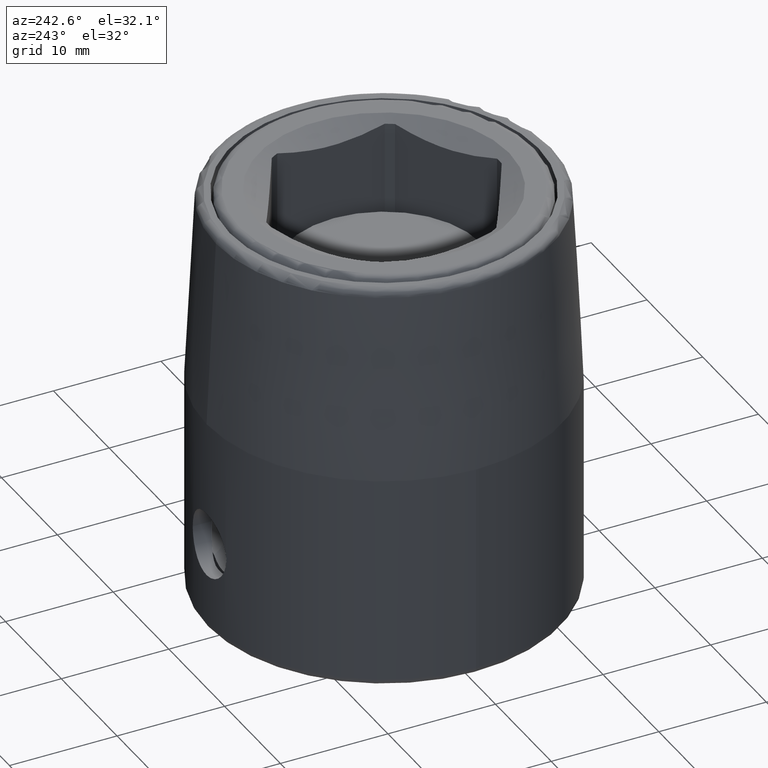
[diagram: clean part render]
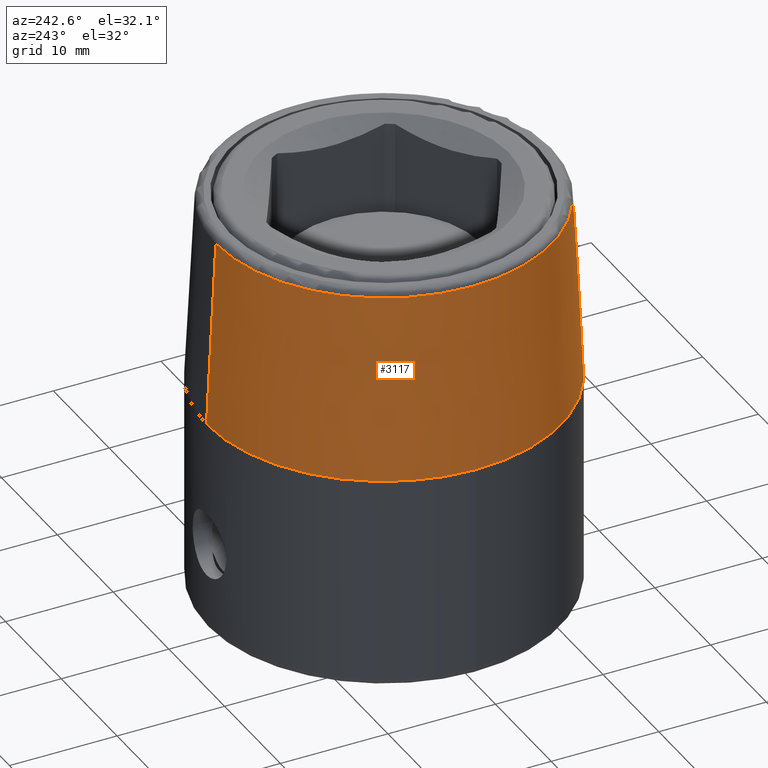
[diagram: same view with one face highlighted and labeled with its STEP entity id]
A machine part, auxiliary view. The second image highlights one B-rep face of the part: STEP entity #3117.
In plain terms, the highlighted conical surface has half-angle 2.862 deg.
Its self-contained STEP definition (entity closure, byte-faithful):
#2717=CARTESIAN_POINT('',(0.E0,0.E0,1.97E1));
#2718=DIRECTION('',(0.E0,0.E0,1.E0));
#2719=DIRECTION('',(0.E0,-1.E0,0.E0));
#2720=AXIS2_PLACEMENT_3D('',#2717,#2718,#2719);
#2725=CARTESIAN_POINT('',(0.E0,0.E0,1.97E1));
#2726=DIRECTION('',(0.E0,0.E0,1.E0));
#2727=DIRECTION('',(1.E0,0.E0,0.E0));
#2728=AXIS2_PLACEMENT_3D('',#2725,#2726,#2727);
#2756=CARTESIAN_POINT('',(0.E0,0.E0,3.703495633186E1));
#2757=DIRECTION('',(0.E0,0.E0,1.E0));
#2758=DIRECTION('',(0.E0,-1.E0,0.E0));
#2759=AXIS2_PLACEMENT_3D('',#2756,#2757,#2758);
#2834=DIRECTION('',(-3.828698066757E-14,4.993761694389E-2,9.987523388778E-1));
#2835=VECTOR('',#2834,1.735661150124E1);
#2836=CARTESIAN_POINT('',(0.E0,-1.65E1,1.97E1));
#2837=LINE('',#2836,#2835);
#2841=DIRECTION('',(3.821425666344E-14,-4.993761694389E-2,9.987523388778E-1));
#2842=VECTOR('',#2841,1.735661150124E1);
#2843=CARTESIAN_POINT('',(0.E0,1.65E1,1.97E1));
#2844=LINE('',#2843,#2842);
#2898=CARTESIAN_POINT('',(1.65E1,0.E0,1.97E1));
#2899=CARTESIAN_POINT('',(0.E0,1.65E1,1.97E1));
#2900=VERTEX_POINT('',#2898);
#2901=VERTEX_POINT('',#2899);
#2904=CARTESIAN_POINT('',(0.E0,-1.65E1,1.97E1));
#2905=VERTEX_POINT('',#2904);
#2918=CARTESIAN_POINT('',(0.E0,-1.563325218341E1,3.703495633186E1));
#2919=CARTESIAN_POINT('',(0.E0,1.563325218341E1,3.703495633186E1));
#2920=VERTEX_POINT('',#2918);
#2921=VERTEX_POINT('',#2919);
#3102=CARTESIAN_POINT('',(0.E0,0.E0,2.836747816593E1));
#3103=DIRECTION('',(0.E0,0.E0,-1.E0));
#3104=DIRECTION('',(0.E0,-1.E0,0.E0));
#3105=AXIS2_PLACEMENT_3D('',#3102,#3103,#3104);
#3106=CONICAL_SURFACE('',#3105,1.606662609170E1,2.862405226112E0);
#3108=ORIENTED_EDGE('',*,*,#3107,.T.);
#3110=ORIENTED_EDGE('',*,*,#3109,.F.);
#3111=ORIENTED_EDGE('',*,*,#3091,.F.);
#3112=ORIENTED_EDGE('',*,*,#3077,.F.);
#3114=ORIENTED_EDGE('',*,*,#3113,.T.);
#3115=EDGE_LOOP('',(#3108,#3110,#3111,#3112,#3114));
#3116=FACE_OUTER_BOUND('',#3115,.F.);
#3117=ADVANCED_FACE('',(#3116),#3106,.T.);
#2721=CIRCLE('',#2720,1.65E1);
#2729=CIRCLE('',#2728,1.65E1);
#2760=CIRCLE('',#2759,1.563325218341E1);
#3077=EDGE_CURVE('',#2905,#2900,#2721,.T.);
#3091=EDGE_CURVE('',#2900,#2901,#2729,.T.);
#3107=EDGE_CURVE('',#2920,#2921,#2760,.T.);
#3109=EDGE_CURVE('',#2901,#2921,#2844,.T.);
#3113=EDGE_CURVE('',#2905,#2920,#2837,.T.);